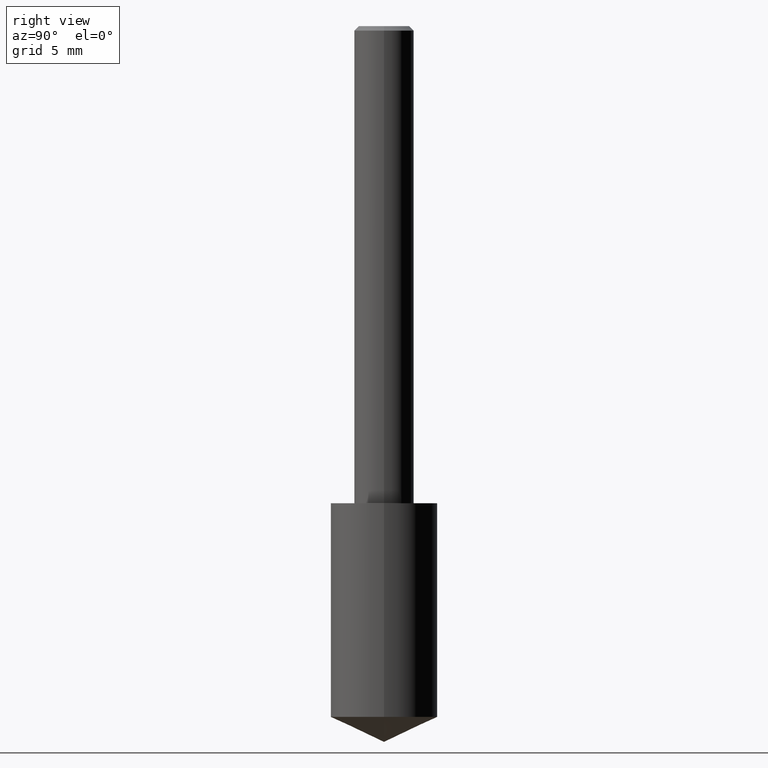
[diagram: clean part render]
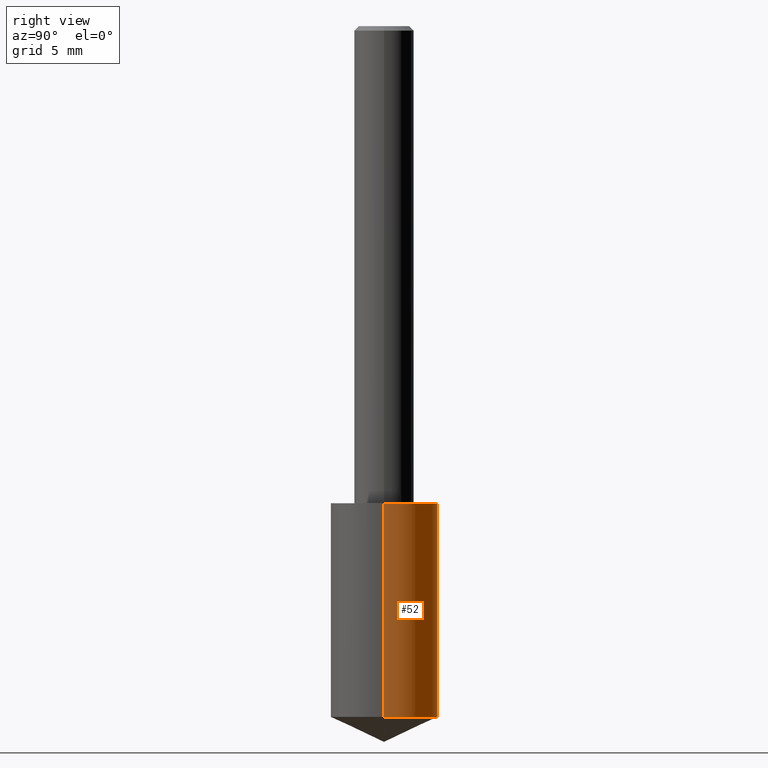
[diagram: same view with one face highlighted and labeled with its STEP entity id]
A machine part, right view. The second image highlights one B-rep face of the part: STEP entity #52.
In plain terms, the highlighted cylindrical surface (partial cylindrical patch) has radius 2.8499 mm, axis along (-0, 0, 1).
Its self-contained STEP definition (entity closure, byte-faithful):
#15 = AXIS2_PLACEMENT_3D ( 'NONE', #40, #328, #192 ) ;
#26 = DIRECTION ( 'NONE',  ( -2.445468806185136877E-29, 3.491481338843145188E-15, 1.000000000000000000 ) ) ;
#27 = CIRCLE ( 'NONE', #15, 0.1122000000000000081 ) ;
#29 = AXIS2_PLACEMENT_3D ( 'NONE', #280, #113, #223 ) ;
#31 = DIRECTION ( 'NONE',  ( -2.445468806185136597E-29, 3.491481338843145583E-15, 1.000000000000000000 ) ) ;
#34 = VERTEX_POINT ( 'NONE', #108 ) ;
#40 = CARTESIAN_POINT ( 'NONE',  ( 3.540256967915716631E-29, -5.054548684867320994E-15, -1.447680280755009541 ) ) ;
#41 = VERTEX_POINT ( 'NONE', #159 ) ;
#44 = CARTESIAN_POINT ( 'NONE',  ( 0.1121999999999999803, -5.838037097303720195E-15, -1.447680280755009541 ) ) ;
#51 = CARTESIAN_POINT ( 'NONE',  ( 0.1122000000000000081, -4.274969751279545967E-15, -1.000000000000000222 ) ) ;
#52 = ADVANCED_FACE ( 'NONE', ( #246 ), #178, .T. ) ;
#66 = CARTESIAN_POINT ( 'NONE',  ( -0.1122000000000000081, -2.694252389320313807E-15, -1.000000000000000222 ) ) ;
#81 = ORIENTED_EDGE ( 'NONE', *, *, #298, .T. ) ;
#108 = CARTESIAN_POINT ( 'NONE',  ( -0.1122000000000000081, -3.475786062332401316E-15, -1.000000000000000222 ) ) ;
#111 = EDGE_LOOP ( 'NONE', ( #81, #139, #272, #161 ) ) ;
#113 = DIRECTION ( 'NONE',  ( -2.445468806185136597E-29, 3.491481338843145583E-15, 1.000000000000000000 ) ) ;
#136 = VECTOR ( 'NONE', #26, 39.37007874015748143 ) ;
#139 = ORIENTED_EDGE ( 'NONE', *, *, #292, .T. ) ;
#140 = LINE ( 'NONE', #66, #173 ) ;
#146 = CARTESIAN_POINT ( 'NONE',  ( -0.1121999999999999803, -4.257319735344488824E-15, -1.447680280755009541 ) ) ;
#159 = CARTESIAN_POINT ( 'NONE',  ( 0.1122000000000000081, -4.274969751279545178E-15, -1.000000000000000222 ) ) ;
#161 = ORIENTED_EDGE ( 'NONE', *, *, #327, .F. ) ;
#168 = DIRECTION ( 'NONE',  ( -2.445468806185136877E-29, 3.491481338843145188E-15, 1.000000000000000000 ) ) ;
#172 = EDGE_CURVE ( 'NONE', #41, #34, #215, .T. ) ;
#173 = VECTOR ( 'NONE', #168, 39.37007874015748143 ) ;
#178 = CYLINDRICAL_SURFACE ( 'NONE', #224, 0.1122000000000000081 ) ;
#187 = VERTEX_POINT ( 'NONE', #44 ) ;
#191 = VERTEX_POINT ( 'NONE', #146 ) ;
#192 = DIRECTION ( 'NONE',  ( 1.000000000000000000, -6.982962677686266711E-15, 0.000000000000000000 ) ) ;
#215 = CIRCLE ( 'NONE', #29, 0.1122000000000000081 ) ;
#223 = DIRECTION ( 'NONE',  ( 1.000000000000000000, -6.982962677686266711E-15, 0.000000000000000000 ) ) ;
#224 = AXIS2_PLACEMENT_3D ( 'NONE', #290, #31, #241 ) ;
#241 = DIRECTION ( 'NONE',  ( 1.000000000000000000, -6.982962677686266711E-15, 0.000000000000000000 ) ) ;
#246 = FACE_OUTER_BOUND ( 'NONE', #111, .T. ) ;
#272 = ORIENTED_EDGE ( 'NONE', *, *, #172, .F. ) ;
#280 = CARTESIAN_POINT ( 'NONE',  ( 2.445468806185136877E-29, -3.491481338843145977E-15, -1.000000000000000222 ) ) ;
#290 = CARTESIAN_POINT ( 'NONE',  ( 2.445468806185137438E-29, -3.491481338843146371E-15, -1.000000000000000222 ) ) ;
#292 = EDGE_CURVE ( 'NONE', #191, #34, #140, .T. ) ;
#298 = EDGE_CURVE ( 'NONE', #187, #191, #27, .T. ) ;
#314 = LINE ( 'NONE', #51, #136 ) ;
#327 = EDGE_CURVE ( 'NONE', #187, #41, #314, .T. ) ;
#328 = DIRECTION ( 'NONE',  ( -2.445468806185136597E-29, 3.491481338843145583E-15, 1.000000000000000000 ) ) ;